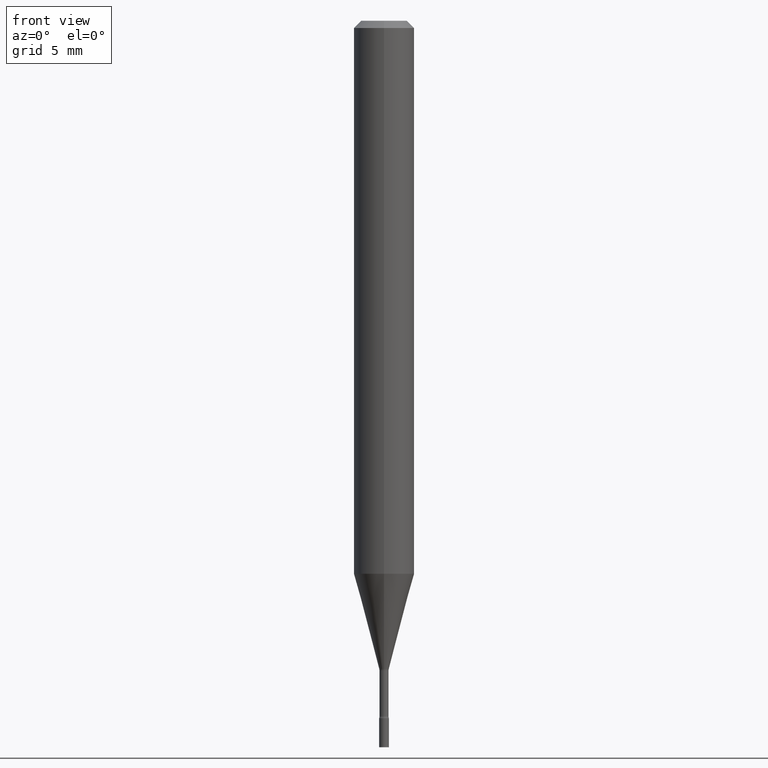
[diagram: clean part render]
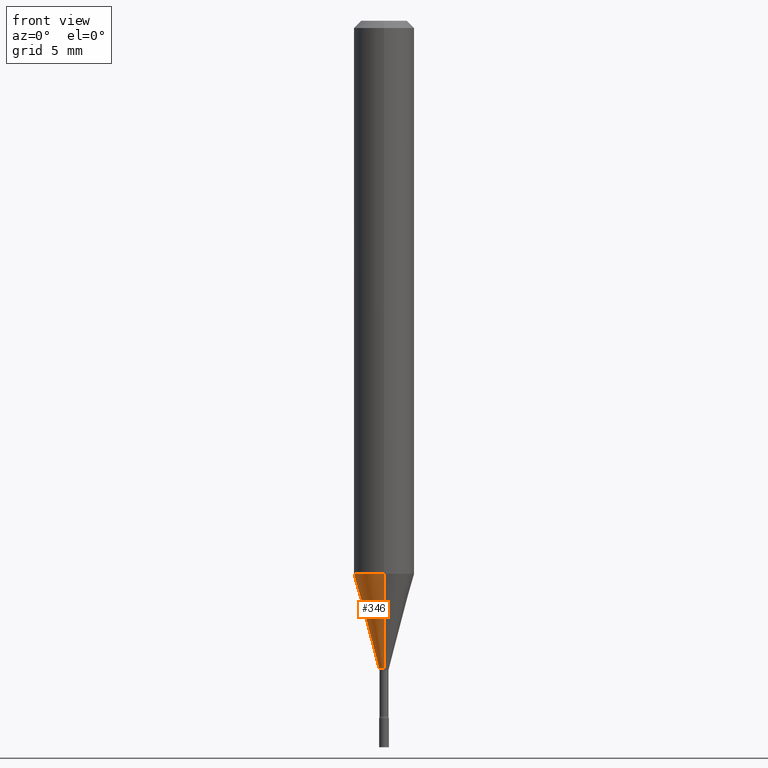
[diagram: same view with one face highlighted and labeled with its STEP entity id]
A machine part, front view. The second image highlights one B-rep face of the part: STEP entity #346.
In plain terms, the highlighted conical surface has half-angle 15 deg.
Its self-contained STEP definition (entity closure, byte-faithful):
#28 = LINE ( 'NONE', #72, #301 ) ;
#60 = ORIENTED_EDGE ( 'NONE', *, *, #451, .F. ) ;
#72 = CARTESIAN_POINT ( 'NONE',  ( -6.920892941966473990E-17, -0.009911112605668655554, -1.338092501787273347 ) ) ;
#103 = CARTESIAN_POINT ( 'NONE',  ( -6.920892941966473990E-17, -0.009911112605668655554, -1.338092501787273347 ) ) ;
#106 = CARTESIAN_POINT ( 'NONE',  ( 3.272128865378104178E-29, -4.672117765284703339E-15, -1.338092501787273347 ) ) ;
#140 = DIRECTION ( 'NONE',  ( -6.982962677686264344E-15, -1.000000000000000000, 0.000000000000000000 ) ) ;
#148 = CARTESIAN_POINT ( 'NONE',  ( 7.042269065258173483E-17, 0.009911112605659312333, -1.338092501787273347 ) ) ;
#149 = ORIENTED_EDGE ( 'NONE', *, *, #472, .T. ) ;
#150 = DIRECTION ( 'NONE',  ( -6.982962677686264344E-15, -1.000000000000000000, 0.000000000000000000 ) ) ;
#157 = DIRECTION ( 'NONE',  ( -2.445368209602522272E-29, 3.491625398875051552E-15, 1.000000000000000000 ) ) ;
#159 = EDGE_CURVE ( 'NONE', #313, #271, #179, .T. ) ;
#171 = VERTEX_POINT ( 'NONE', #372 ) ;
#174 = VERTEX_POINT ( 'NONE', #447 ) ;
#179 = CIRCLE ( 'NONE', #473, 0.009911112605663983943 ) ;
#234 = ORIENTED_EDGE ( 'NONE', *, *, #159, .T. ) ;
#265 = DIRECTION ( 'NONE',  ( -2.445368209602522272E-29, 3.491625398875051552E-15, 1.000000000000000000 ) ) ;
#271 = VERTEX_POINT ( 'NONE', #103 ) ;
#278 = CIRCLE ( 'NONE', #519, 0.06250000000000000000 ) ;
#298 = DIRECTION ( 'NONE',  ( 1.839019923739598738E-15, 0.2588190451025247363, 0.9659258262890673130 ) ) ;
#301 = VECTOR ( 'NONE', #436, 39.37007874015748854 ) ;
#313 = VERTEX_POINT ( 'NONE', #390 ) ;
#337 = EDGE_CURVE ( 'NONE', #313, #171, #498, .T. ) ;
#346 = ADVANCED_FACE ( 'NONE', ( #460 ), #367, .T. ) ;
#359 = ORIENTED_EDGE ( 'NONE', *, *, #337, .F. ) ;
#367 = CONICAL_SURFACE ( 'NONE', #427, 0.009911112605663983943, 0.2617993877991500740 ) ;
#372 = CARTESIAN_POINT ( 'NONE',  ( 4.440892098500904235E-16, 0.06249999999999601014, -1.141828102118093602 ) ) ;
#390 = CARTESIAN_POINT ( 'NONE',  ( 2.572559502513362641E-16, 0.009911112605659312333, -1.338092501787273347 ) ) ;
#399 = VECTOR ( 'NONE', #298, 39.37007874015748854 ) ;
#409 = EDGE_LOOP ( 'NONE', ( #359, #234, #149, #60 ) ) ;
#427 = AXIS2_PLACEMENT_3D ( 'NONE', #106, #265, #150 ) ;
#428 = DIRECTION ( 'NONE',  ( -6.982962677686265922E-15, -1.000000000000000000, 4.370956789862821150E-15 ) ) ;
#436 = DIRECTION ( 'NONE',  ( -1.807323732225328562E-15, -0.2588190451025179639, 0.9659258262890690894 ) ) ;
#442 = CARTESIAN_POINT ( 'NONE',  ( 3.272128865378104178E-29, -4.672117765284703339E-15, -1.338092501787273347 ) ) ;
#447 = CARTESIAN_POINT ( 'NONE',  ( -4.364351673553637635E-16, -0.06250000000000399680, -1.141828102118092936 ) ) ;
#451 = EDGE_CURVE ( 'NONE', #171, #174, #278, .T. ) ;
#460 = FACE_OUTER_BOUND ( 'NONE', #409, .T. ) ;
#472 = EDGE_CURVE ( 'NONE', #271, #174, #28, .T. ) ;
#473 = AXIS2_PLACEMENT_3D ( 'NONE', #442, #487, #140 ) ;
#487 = DIRECTION ( 'NONE',  ( -2.445368209602522272E-29, 3.491625398875051552E-15, 1.000000000000000000 ) ) ;
#498 = LINE ( 'NONE', #148, #399 ) ;
#512 = CARTESIAN_POINT ( 'NONE',  ( 2.792190141750367588E-29, -3.986836002504830436E-15, -1.141828102118093380 ) ) ;
#519 = AXIS2_PLACEMENT_3D ( 'NONE', #512, #157, #428 ) ;